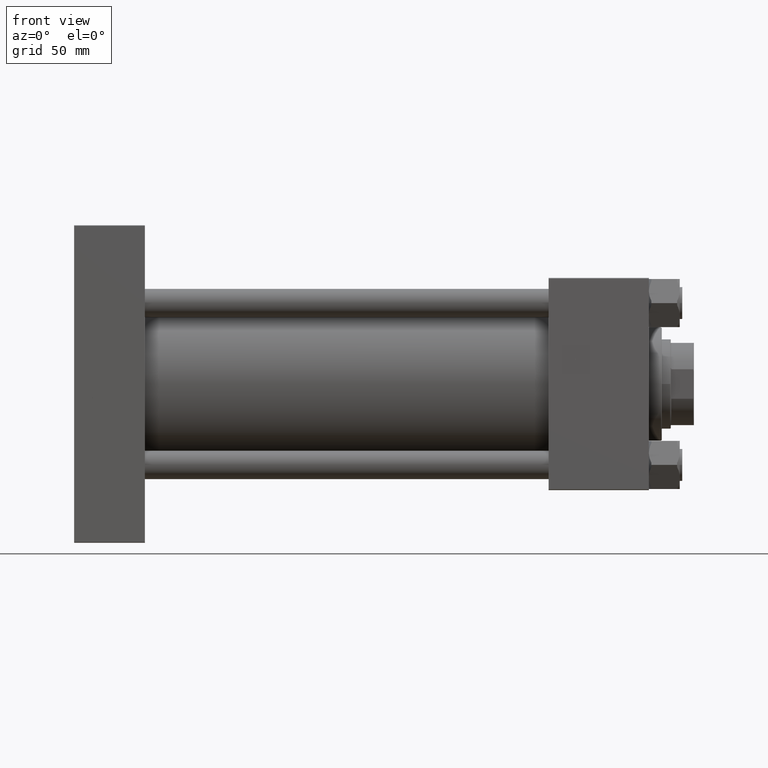
[diagram: clean part render]
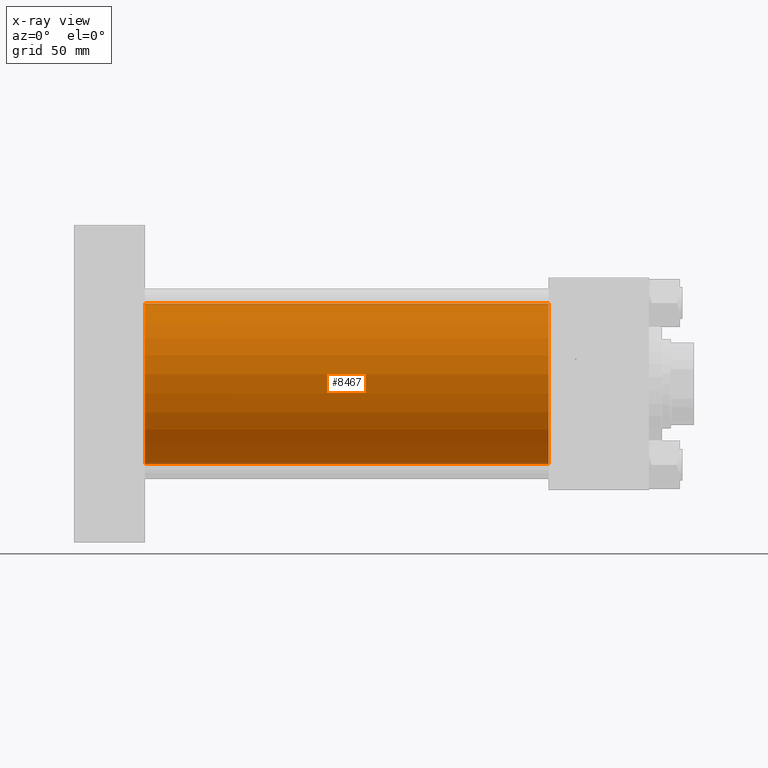
[diagram: x-ray — body ghosted, one internal face saturated and labeled with its STEP entity id]
A machine part, front view, then the same camera in x-ray: the body is ghosted and one INTERNAL B-rep face — a face not visible from any outside direction — is saturated and labeled: STEP entity #8467.
In plain terms, the highlighted cylindrical surface (partial cylindrical patch) has radius 62.5 mm, axis along (-1, -0, -0).
Its self-contained STEP definition (entity closure, byte-faithful):
#59 = DIRECTION ( 'NONE',  ( -1.000000000000000000, -0.000000000000000000, -0.000000000000000000 ) ) ;
#1354 = AXIS2_PLACEMENT_3D ( 'NONE', #50988, #14554, #26790 ) ;
#5192 = EDGE_CURVE ( 'NONE', #7287, #46346, #15800, .T. ) ;
#6278 = CARTESIAN_POINT ( 'NONE',  ( 369.0000000000000000, -2.602085213965210642E-15, 0.000000000000000000 ) ) ;
#7006 = CYLINDRICAL_SURFACE ( 'NONE', #25616, 62.50000000000000000 ) ;
#7287 = VERTEX_POINT ( 'NONE', #46158 ) ;
#8467 = ADVANCED_FACE ( 'NONE', ( #27241 ), #7006, .F. ) ;
#10023 = DIRECTION ( 'NONE',  ( 1.000000000000000000, 0.000000000000000000, 0.000000000000000000 ) ) ;
#11546 = DIRECTION ( 'NONE',  ( -1.000000000000000000, -0.000000000000000000, -0.000000000000000000 ) ) ;
#11763 = CIRCLE ( 'NONE', #18551, 62.50000000000000000 ) ;
#13389 = CARTESIAN_POINT ( 'NONE',  ( 55.00000000000000000, -2.602085213965210642E-15, 62.50000000000000000 ) ) ;
#13455 = VECTOR ( 'NONE', #50352, 1000.000000000000000 ) ;
#14199 = VERTEX_POINT ( 'NONE', #35124 ) ;
#14554 = DIRECTION ( 'NONE',  ( 1.000000000000000000, 0.000000000000000000, 0.000000000000000000 ) ) ;
#15800 = LINE ( 'NONE', #16580, #33150 ) ;
#16580 = CARTESIAN_POINT ( 'NONE',  ( 369.0000000000000000, -2.602085213965210642E-15, 62.50000000000000000 ) ) ;
#17519 = CIRCLE ( 'NONE', #1354, 62.50000000000000000 ) ;
#17888 = CARTESIAN_POINT ( 'NONE',  ( 369.0000000000000000, 5.051957280705747162E-15, -62.50000000000000000 ) ) ;
#18551 = AXIS2_PLACEMENT_3D ( 'NONE', #6278, #10023, #42452 ) ;
#20040 = EDGE_CURVE ( 'NONE', #46346, #42863, #17519, .T. ) ;
#21441 = EDGE_LOOP ( 'NONE', ( #51497, #47092, #50602, #42965 ) ) ;
#23027 = EDGE_CURVE ( 'NONE', #7287, #14199, #11763, .T. ) ;
#23261 = DIRECTION ( 'NONE',  ( 0.000000000000000000, 0.000000000000000000, 1.000000000000000000 ) ) ;
#23599 = EDGE_CURVE ( 'NONE', #14199, #42863, #38105, .T. ) ;
#25616 = AXIS2_PLACEMENT_3D ( 'NONE', #47987, #11546, #23261 ) ;
#26790 = DIRECTION ( 'NONE',  ( 0.000000000000000000, 0.000000000000000000, -1.000000000000000000 ) ) ;
#27241 = FACE_OUTER_BOUND ( 'NONE', #21441, .T. ) ;
#33150 = VECTOR ( 'NONE', #59, 1000.000000000000000 ) ;
#35124 = CARTESIAN_POINT ( 'NONE',  ( 369.0000000000000000, 5.051957280705747162E-15, -62.50000000000000000 ) ) ;
#38105 = LINE ( 'NONE', #17888, #13455 ) ;
#42452 = DIRECTION ( 'NONE',  ( 0.000000000000000000, 0.000000000000000000, -1.000000000000000000 ) ) ;
#42863 = VERTEX_POINT ( 'NONE', #47409 ) ;
#42965 = ORIENTED_EDGE ( 'NONE', *, *, #5192, .F. ) ;
#46158 = CARTESIAN_POINT ( 'NONE',  ( 369.0000000000000000, -2.602085213965210642E-15, 62.50000000000000000 ) ) ;
#46346 = VERTEX_POINT ( 'NONE', #13389 ) ;
#47092 = ORIENTED_EDGE ( 'NONE', *, *, #23599, .T. ) ;
#47409 = CARTESIAN_POINT ( 'NONE',  ( 55.00000000000000000, 5.051957280705747162E-15, -62.50000000000000000 ) ) ;
#47987 = CARTESIAN_POINT ( 'NONE',  ( 369.0000000000000000, -2.602085213965210642E-15, 0.000000000000000000 ) ) ;
#50352 = DIRECTION ( 'NONE',  ( -1.000000000000000000, -0.000000000000000000, -0.000000000000000000 ) ) ;
#50602 = ORIENTED_EDGE ( 'NONE', *, *, #20040, .F. ) ;
#50988 = CARTESIAN_POINT ( 'NONE',  ( 55.00000000000000000, -2.602085213965210642E-15, 0.000000000000000000 ) ) ;
#51497 = ORIENTED_EDGE ( 'NONE', *, *, #23027, .T. ) ;